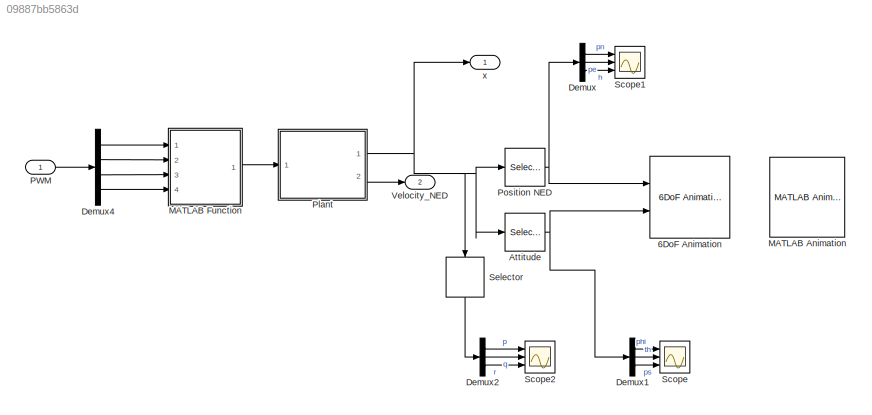
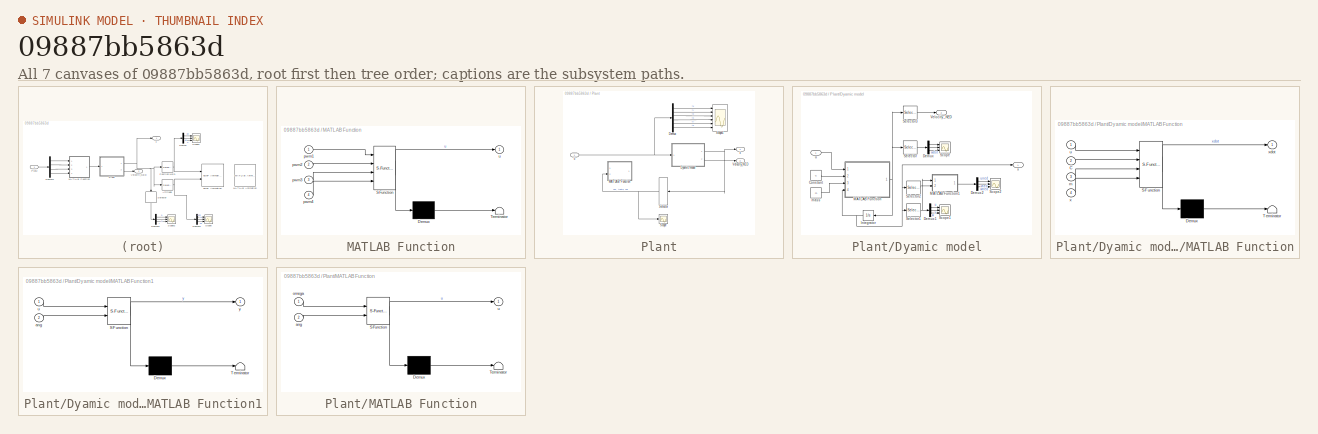
[diagram: thumbnail index - all 7 canvases of the model, root first then tree order]
MODEL slx_09887bb5863d
KIND model
CONFIG AbsTol = auto
CONFIG EnableMultiTasking = off
CONFIG FixedStep = 0.001
CONFIG MaxStep = auto
CONFIG MinStep = auto
CONFIG RelTol = 1e-3
CONFIG SampleTimeConstraint = Unconstrained
CONFIG Solver = ode4
CONFIG SolverName = ode4
CONFIG StartTime = 0.0
CONFIG StopTime = 10.0
BLOCK [Reference] 6DoF Animation  REF=aerolibanim/6DoF Animation
  Ports = [2]
  SourceBlock = aerolibanim/6DoF Animation
  SourceProductBaseCode = AE
  SourceProductName = Aerospace Blockset
  SourceType = 6DoF_Animation
BLOCK [Selector] Attitude
  IndexOptions = Index vector (dialog)
  Indices = [4:6]
  InputPortWidth = 12
  OutputSizes = 1
  Ports = [1, 1]
BLOCK [Demux] Demux
  DisplayOption = bar
  Outputs = 3
  Ports = [1, 3]
BLOCK [Demux] Demux1
  DisplayOption = bar
  Outputs = 3
  Ports = [1, 3]
BLOCK [Demux] Demux2
  DisplayOption = bar
  Outputs = 3
  Ports = [1, 3]
BLOCK [Demux] Demux4
  DisplayOption = bar
  Ports = [1, 4]
BLOCK [Reference] MATLAB Animation  REF=aerolibanim/MATLAB
Animation
  Commented = on
  Ports = [2]
  SourceBlock = aerolibanim/MATLAB\nAnimation
  SourceProductBaseCode = AE
  SourceProductName = Aerospace Blockset
  SourceType = AeroMATLABAnimation
  Tag = Matlab Animation 6 DOF
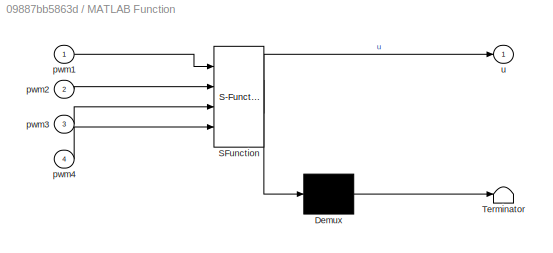
BLOCK [SubSystem] MATLAB Function
  ErrorFcn = Stateflow.Translate.translate
  PermitHierarchicalResolution = ExplicitOnly
  Ports = [4, 1]
  RequestExecContextInheritance = off
  SFBlockType = MATLAB Function
  TreatAsAtomicUnit = on
BLOCK [Demux] MATLAB Function/ Demux 
  Outputs = 1
  Ports = [1, 1]
BLOCK [S-Function] MATLAB Function/ SFunction 
  EnableBusSupport = on
  FunctionName = sf_sfun
  PortCounts = [4 2]
  Ports = [4, 2]
  SFcnIsStateOwnerBlock = off
  SFunctionDeploymentMode = off
  Tag = Stateflow S-Function feedback_plant 3
BLOCK [Terminator] MATLAB Function/ Terminator 
BLOCK [Inport] MATLAB Function/pwm1
  IconDisplay = Port number
BLOCK [Inport] MATLAB Function/pwm2
  IconDisplay = Port number
  Port = 2
BLOCK [Inport] MATLAB Function/pwm3
  IconDisplay = Port number
  Port = 3
BLOCK [Inport] MATLAB Function/pwm4
  IconDisplay = Port number
  Port = 4
BLOCK [Outport] MATLAB Function/u
  IconDisplay = Port number
BLOCK [Inport] PWM 
  IconDisplay = Port number
BLOCK [SubSystem] Plant
  Ports = [1, 2]
  RequestExecContextInheritance = off
BLOCK [Demux] Plant/Demux
  DisplayOption = bar
  Outputs = 6
  Ports = [1, 6]
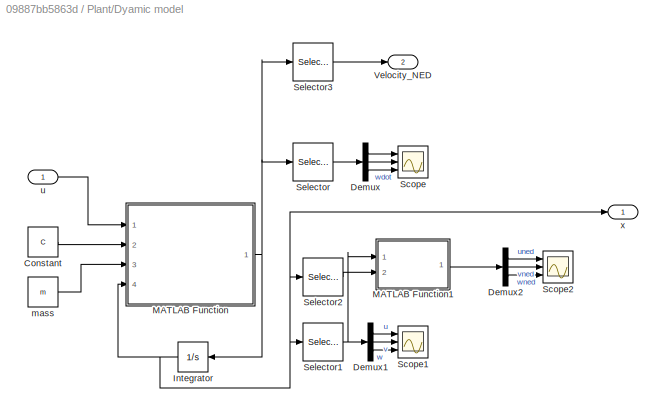
BLOCK [SubSystem] Plant/Dyamic model
  Ports = [1, 2]
  RequestExecContextInheritance = off
BLOCK [Constant] Plant/Dyamic model/Constant
  Value = C
BLOCK [Demux] Plant/Dyamic model/Demux
  DisplayOption = bar
  Outputs = 3
  Ports = [1, 3]
BLOCK [Demux] Plant/Dyamic model/Demux1
  DisplayOption = bar
  Outputs = 3
  Ports = [1, 3]
BLOCK [Demux] Plant/Dyamic model/Demux2
  DisplayOption = bar
  Outputs = 3
  Ports = [1, 3]
BLOCK [Integrator] Plant/Dyamic model/Integrator
  Ports = [1, 1]
BLOCK [SubSystem] Plant/Dyamic model/MATLAB Function
  ErrorFcn = Stateflow.Translate.translate
  PermitHierarchicalResolution = ExplicitOnly
  Ports = [4, 1]
  RequestExecContextInheritance = off
  SFBlockType = MATLAB Function
  TreatAsAtomicUnit = on
BLOCK [Demux] Plant/Dyamic model/MATLAB Function/ Demux 
  Outputs = 1
  Ports = [1, 1]
BLOCK [S-Function] Plant/Dyamic model/MATLAB Function/ SFunction 
  EnableBusSupport = on
  FunctionName = sf_sfun
  PortCounts = [4 2]
  Ports = [4, 2]
  SFcnIsStateOwnerBlock = off
  SFunctionDeploymentMode = off
  Tag = Stateflow S-Function feedback_plant 2
BLOCK [Terminator] Plant/Dyamic model/MATLAB Function/ Terminator 
BLOCK [Inport] Plant/Dyamic model/MATLAB Function/C
  IconDisplay = Port number
  Port = 2
BLOCK [Inport] Plant/Dyamic model/MATLAB Function/m
  IconDisplay = Port number
  Port = 3
BLOCK [Inport] Plant/Dyamic model/MATLAB Function/u
  IconDisplay = Port number
BLOCK [Inport] Plant/Dyamic model/MATLAB Function/x
  IconDisplay = Port number
  Port = 4
BLOCK [Outport] Plant/Dyamic model/MATLAB Function/xdot
  IconDisplay = Port number
BLOCK [SubSystem] Plant/Dyamic model/MATLAB Function1
  ErrorFcn = Stateflow.Translate.translate
  PermitHierarchicalResolution = ExplicitOnly
  Ports = [2, 1]
  RequestExecContextInheritance = off
  SFBlockType = MATLAB Function
  TreatAsAtomicUnit = on
BLOCK [Demux] Plant/Dyamic model/MATLAB Function1/ Demux 
  Outputs = 1
  Ports = [1, 1]
BLOCK [S-Function] Plant/Dyamic model/MATLAB Function1/ SFunction 
  EnableBusSupport = on
  FunctionName = sf_sfun
  PortCounts = [2 2]
  Ports = [2, 2]
  SFcnIsStateOwnerBlock = off
  SFunctionDeploymentMode = off
  Tag = Stateflow S-Function feedback_plant 4
BLOCK [Terminator] Plant/Dyamic model/MATLAB Function1/ Terminator 
BLOCK [Inport] Plant/Dyamic model/MATLAB Function1/ang
  IconDisplay = Port number
  Port = 2
BLOCK [Inport] Plant/Dyamic model/MATLAB Function1/u
  IconDisplay = Port number
BLOCK [Outport] Plant/Dyamic model/MATLAB Function1/y
  IconDisplay = Port number
BLOCK [Scope] Plant/Dyamic model/Scope
  Floating = off
  NumInputPorts = 3
  Ports = [3]
  ScopeSpecificationString = Simulink.scopes.TimeScopeBlockCfg('CurrentConfiguration', extmgr.ConfigurationSet(extmgr.Configuration('Core','General UI',true),extmgr.Configuration('Core','Source UI',true),extmgr.Configuration('Sources','WiredSimulink',true,'DataLoggingVariableName','ScopeData1'),extmgr.Configuration('Visuals','Time Domain',true,'SerializedDisplays',{struct('MinYLimReal','-1265.412','MaxYLimReal','1260.27433','...<+1516ch>
BLOCK [Scope] Plant/Dyamic model/Scope1
  Floating = off
  NumInputPorts = 3
  Ports = [3]
  ScopeSpecificationString = Simulink.scopes.TimeScopeBlockCfg('CurrentConfiguration', extmgr.ConfigurationSet(extmgr.Configuration('Core','General UI',true),extmgr.Configuration('Core','Source UI',true),extmgr.Configuration('Sources','WiredSimulink',true,'DataLoggingVariableName','ScopeData2'),extmgr.Configuration('Visuals','Time Domain',true,'SerializedDisplays',{struct('MinYLimReal','-111.73254','MaxYLimReal','172.98419','...<+1571ch>
BLOCK [Scope] Plant/Dyamic model/Scope2
  Floating = off
  NumInputPorts = 3
  Ports = [3]
  ScopeSpecificationString = Simulink.scopes.TimeScopeBlockCfg('CurrentConfiguration', extmgr.ConfigurationSet(extmgr.Configuration('Core','General UI',true),extmgr.Configuration('Core','Source UI',true),extmgr.Configuration('Sources','WiredSimulink',true,'DataLoggingVariableName','ScopeData1'),extmgr.Configuration('Visuals','Time Domain',true,'SerializedDisplays',{struct('MinYLimReal','-3.24315','MaxYLimReal','2.18634','YLab...<+1498ch>
BLOCK [Selector] Plant/Dyamic model/Selector
  IndexOptions = Index vector (dialog)
  Indices = [7:9]
  InputPortWidth = 12
  OutputSizes = 1
  Ports = [1, 1]
BLOCK [Selector] Plant/Dyamic model/Selector1
  IndexOptions = Index vector (dialog)
  Indices = [7:9]
  InputPortWidth = 12
  OutputSizes = 1
  Ports = [1, 1]
BLOCK [Selector] Plant/Dyamic model/Selector2
  IndexOptions = Index vector (dialog)
  Indices = [4:6]
  InputPortWidth = 12
  OutputSizes = 1
  Ports = [1, 1]
BLOCK [Selector] Plant/Dyamic model/Selector3
  IndexOptions = Index vector (dialog)
  Indices = [1:3]
  InputPortWidth = 12
  OutputSizes = 1
  Ports = [1, 1]
BLOCK [Outport] Plant/Dyamic model/Velocity_NED
  IconDisplay = Port number
  Port = 2
BLOCK [Constant] Plant/Dyamic model/mass
  Value = m
BLOCK [Inport] Plant/Dyamic model/u
  IconDisplay = Port number
BLOCK [Outport] Plant/Dyamic model/x
  IconDisplay = Port number
BLOCK [SubSystem] Plant/MATLAB Function
  Commented = on
  ErrorFcn = Stateflow.Translate.translate
  PermitHierarchicalResolution = ExplicitOnly
  Ports = [2, 1]
  RequestExecContextInheritance = off
  SFBlockType = MATLAB Function
  TreatAsAtomicUnit = on
BLOCK [Demux] Plant/MATLAB Function/ Demux 
  Outputs = 1
  Ports = [1, 1]
BLOCK [S-Function] Plant/MATLAB Function/ SFunction 
  EnableBusSupport = on
  FunctionName = sf_sfun
  PortCounts = [2 2]
  Ports = [2, 2]
  SFcnIsStateOwnerBlock = off
  SFunctionDeploymentMode = off
  Tag = Stateflow S-Function feedback_plant 1
BLOCK [Terminator] Plant/MATLAB Function/ Terminator 
BLOCK [Inport] Plant/MATLAB Function/ang
  IconDisplay = Port number
  Port = 2
BLOCK [Inport] Plant/MATLAB Function/omega
  IconDisplay = Port number
BLOCK [Outport] Plant/MATLAB Function/u
  IconDisplay = Port number
BLOCK [Scope] Plant/Scope
  Floating = off
  NumInputPorts = 1
  Ports = [1]
  ScopeSpecificationString = Simulink.scopes.TimeScopeBlockCfg('CurrentConfiguration', extmgr.ConfigurationSet(extmgr.Configuration('Core','General UI',true),extmgr.Configuration('Core','Source UI',true),extmgr.Configuration('Sources','WiredSimulink',true,'DataLoggingVariableName','ScopeData3'),extmgr.Configuration('Visuals','Time Domain',true,'SerializedDisplays',{struct('MinYLimReal','-12186.3164','MaxYLimReal','13576.66615...<+1469ch>
BLOCK [Scope] Plant/Scope1
  Floating = off
  NumInputPorts = 6
  Ports = [6]
  ScopeSpecificationString = Simulink.scopes.TimeScopeBlockCfg('CurrentConfiguration', extmgr.ConfigurationSet(extmgr.Configuration('Core','General UI',true),extmgr.Configuration('Core','Source UI',true),extmgr.Configuration('Sources','WiredSimulink',true,'DataLoggingVariableName','ScopeData4'),extmgr.Configuration('Visuals','Time Domain',true,'SerializedDisplays',{struct('MinYLimReal','-1.06713','MaxYLimReal','1.17086','YLab...<+1654ch>
BLOCK [Selector] Plant/Selector
  IndexOptions = Index vector (dialog)
  Indices = [4:6]
  InputPortWidth = 12
  OutputSizes = 1
  Ports = [1, 1]
BLOCK [Outport] Plant/Velocity_NED
  IconDisplay = Port number
  Port = 2
BLOCK [Inport] Plant/u 
  IconDisplay = Port number
BLOCK [Outport] Plant/x
  IconDisplay = Port number
BLOCK [Selector] Position NED
  IndexOptions = Index vector (dialog)
  Indices = [1:3]
  InputPortWidth = 12
  OutputSizes = 1
  Ports = [1, 1]
BLOCK [Scope] Scope
  Floating = off
  NumInputPorts = 3
  Ports = [3]
  ScopeSpecificationString = Simulink.scopes.TimeScopeBlockCfg('CurrentConfiguration', extmgr.ConfigurationSet(extmgr.Configuration('Core','General UI',true),extmgr.Configuration('Core','Source UI',true),extmgr.Configuration('Sources','WiredSimulink',true,'DataLoggingVariableName','ScopeData1'),extmgr.Configuration('Visuals','Time Domain',true,'SerializedDisplays',{struct('MinYLimReal','-0.24878','MaxYLimReal','0.09146','YLab...<+1565ch>
BLOCK [Scope] Scope1
  Floating = off
  NumInputPorts = 3
  Ports = [3]
  ScopeSpecificationString = Simulink.scopes.TimeScopeBlockCfg('CurrentConfiguration', extmgr.ConfigurationSet(extmgr.Configuration('Core','General UI',true),extmgr.Configuration('Core','Source UI',true),extmgr.Configuration('Sources','WiredSimulink',true,'DataLoggingVariableName','ScopeData2'),extmgr.Configuration('Visuals','Time Domain',true,'SerializedDisplays',{struct('MinYLimReal','-6.26448','MaxYLimReal','6.38025','YLab...<+1913ch>
BLOCK [Scope] Scope2
  Floating = off
  NumInputPorts = 3
  Ports = [3]
  ScopeSpecificationString = Simulink.scopes.TimeScopeBlockCfg('CurrentConfiguration', extmgr.ConfigurationSet(extmgr.Configuration('Core','General UI',true),extmgr.Configuration('Core','Source UI',true),extmgr.Configuration('Sources','WiredSimulink',true,'DataLoggingVariableName','ScopeData1'),extmgr.Configuration('Visuals','Time Domain',true,'SerializedDisplays',{struct('MinYLimReal','-1.29013','MaxYLimReal','1.10658','YLab...<+1492ch>
BLOCK [Selector] Selector
  IndexOptions = Index vector (dialog)
  Indices = [10:12]
  InputPortWidth = 12
  OutputSizes = 1
  Ports = [1, 1]
BLOCK [Outport] Velocity_NED
  IconDisplay = Port number
  Port = 2
BLOCK [Outport] x
  IconDisplay = Port number
NET Attitude:1 -> 6DoF Animation:2, Demux1:1
LINE Demux1:1 -> Scope:1
LINE Demux1:2 -> Scope:2
LINE Demux1:3 -> Scope:3
LINE Demux2:1 -> Scope2:1
LINE Demux2:2 -> Scope2:2
LINE Demux2:3 -> Scope2:3
LINE Demux4:1 -> MATLAB Function:1
LINE Demux4:2 -> MATLAB Function:2
LINE Demux4:3 -> MATLAB Function:3
LINE Demux4:4 -> MATLAB Function:4
LINE Demux:1 -> Scope1:1
LINE Demux:2 -> Scope1:2
LINE Demux:3 -> Scope1:3
LINE MATLAB Function:1 -> Plant:1
LINE PWM :1 -> Demux4:1
LINE Plant/Demux:1 -> Plant/Scope1:1
LINE Plant/Demux:2 -> Plant/Scope1:2
LINE Plant/Demux:3 -> Plant/Scope1:3
LINE Plant/Demux:4 -> Plant/Scope1:4
LINE Plant/Demux:5 -> Plant/Scope1:5
LINE Plant/Demux:6 -> Plant/Scope1:6
LINE Plant/Dyamic model/Constant:1 -> Plant/Dyamic model/MATLAB Function:2
LINE Plant/Dyamic model/Demux1:1 -> Plant/Dyamic model/Scope1:1
LINE Plant/Dyamic model/Demux1:2 -> Plant/Dyamic model/Scope1:2
LINE Plant/Dyamic model/Demux1:3 -> Plant/Dyamic model/Scope1:3
LINE Plant/Dyamic model/Demux2:1 -> Plant/Dyamic model/Scope2:1
LINE Plant/Dyamic model/Demux2:2 -> Plant/Dyamic model/Scope2:2
LINE Plant/Dyamic model/Demux2:3 -> Plant/Dyamic model/Scope2:3
LINE Plant/Dyamic model/Demux:1 -> Plant/Dyamic model/Scope:1
LINE Plant/Dyamic model/Demux:2 -> Plant/Dyamic model/Scope:2
LINE Plant/Dyamic model/Demux:3 -> Plant/Dyamic model/Scope:3
NET Plant/Dyamic model/Integrator:1 -> Plant/Dyamic model/MATLAB Function:4, Plant/Dyamic model/Selector1:1, Plant/Dyamic model/Selector2:1, Plant/Dyamic model/x:1
LINE Plant/Dyamic model/MATLAB Function1:1 -> Plant/Dyamic model/Demux2:1
NET Plant/Dyamic model/MATLAB Function:1 -> Plant/Dyamic model/Integrator:1, Plant/Dyamic model/Selector3:1, Plant/Dyamic model/Selector:1
NET Plant/Dyamic model/Selector1:1 -> Plant/Dyamic model/Demux1:1, Plant/Dyamic model/MATLAB Function1:1
LINE Plant/Dyamic model/Selector2:1 -> Plant/Dyamic model/MATLAB Function1:2
LINE Plant/Dyamic model/Selector3:1 -> Plant/Dyamic model/Velocity_NED:1
LINE Plant/Dyamic model/Selector:1 -> Plant/Dyamic model/Demux:1
LINE Plant/Dyamic model/mass:1 -> Plant/Dyamic model/MATLAB Function:3
LINE Plant/Dyamic model/u:1 -> Plant/Dyamic model/MATLAB Function:1
NET Plant/Dyamic model:1 -> Plant/Selector:1, Plant/x:1
LINE Plant/Dyamic model:2 -> Plant/Velocity_NED:1
NET Plant/Selector:1 -> Plant/MATLAB Function:2, Plant/Scope:1
NET Plant/u :1 -> Plant/Demux:1, Plant/Dyamic model:1
NET Plant:1 -> Attitude:1, Position NED:1, Selector:1, x:1
LINE Plant:2 -> Velocity_NED:1
NET Position NED:1 -> 6DoF Animation:1, Demux:1
LINE Selector:1 -> Demux2:1
note: NET lines group one-source signal fan-out (src -> all destinations, sorted); 1:1 wires keep LINE
CHART Plant/MATLAB Function states=1 transitions=1
  STATE_LABEL 'eML_blk_kernel()'
  STATE_LABEL "SCRIPT:\nfunction u = actuator(omega,ang)\n% Converts angular speed produced by controller into forces and torques in\n% the inertial frame\n% global m g Kt Kq l\n\nm = 1.5;\ng = 9.81;\nKt = 1.4092e-5;\nKq = 3.9462e-7;\nl = 0.2;\n\nu = zeros(6,1);\nph = ang(1);\nth = ang(2);\nps = ang(3);\n\n% Changed sign to values related to axis y and z since I'm in NED!!\n% u(1:3) = [-sin(th); cos(th)*sin(ps); cos(th)*cos(ps)]*...<+493ch>"
CHART Plant/Dyamic model/MATLAB Function states=1 transitions=1
  STATE_LABEL 'eML_blk_kernel()'
  STATE_LABEL 'SCRIPT:\nfunction xdot = quadrotor_dynamics(u,C,m,x)\n\nph = x(4);\nth = x(5);\nps = x(6);\nU = x(7);\nV = x(8);\nW = x(9);\np = x(10);\nq = x(11);\nr = x(12);\n% Rotation from body to NED\n% Rb_ned = [cos(th)*cos(ps), -cos(ph)*sin(ps) + sin(ph)*sin(th)*...\n%                 cos(ps), sin(ph)*sin(ps) + cos(ph)*sin(th)*cos(ps)\n%             cos(th)*sin(ps), cos(ph)*sin(th)*cos(ps), -sin(ph)*...\n%                ...<+1769ch>'
CHART MATLAB Function states=1 transitions=1
  STATE_LABEL 'eML_blk_kernel()'
  STATE_LABEL 'SCRIPT:\nfunction u = fcn(pwm1, pwm2, pwm3, pwm4)\n\nl = 0.2;\nP = [1.163247673946401e-05,-0.020227124498192,8.151335788071506];\nQ = [2.660432014565793e-07,-4.679737999801719e-04,0.204583957778948];\nu = zeros(6,1);\nu(3) = -(polyval(P,pwm1) + polyval(P,pwm2) + polyval(P,pwm3) + polyval(P,pwm4));\nu(4) = (polyval(P,pwm3) + polyval(P,pwm2) - polyval(P,pwm1) - polyval(P,pwm4))*l;\nu(5) = (polyval(P,pwm1) + ...<+169ch>'
CHART Plant/Dyamic model/MATLAB Function1 states=1 transitions=1
  STATE_LABEL 'eML_blk_kernel()'
  STATE_LABEL 'SCRIPT:\nfunction y = fcn(u,ang)\n\nph = ang(1);\nth = ang(2);\nps = ang(3);\n\nRb_ned = [ cos(th)*cos(ps), cos(th)*sin(ps), -sin(th)\n            -cos(ph)*sin(ps) + sin(ph)*sin(th)*cos(ps), cos(ph)...\n                *cos(ps) + sin(ph)*sin(th)*sin(ps), sin(ph)*cos(th)\n            sin(ph)*sin(ps) + cos(ph)*sin(th)*cos(ps), -sin(ph)...\n            *cos(ps) + cos(ph)*sin(th)*sin(ps), cos(ph)*cos(th) ];\n    ...<+25ch>'
